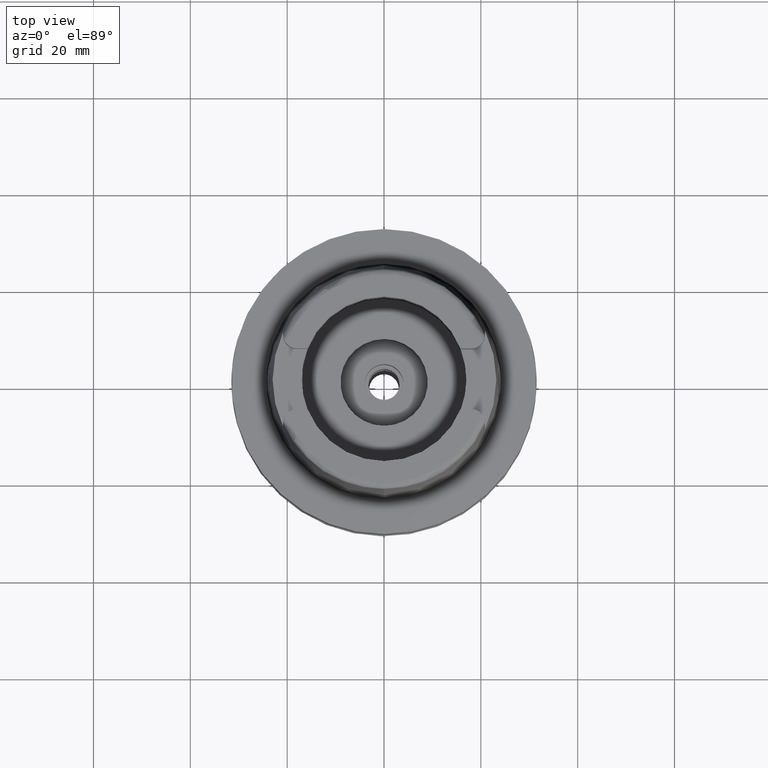
[diagram: clean part render]
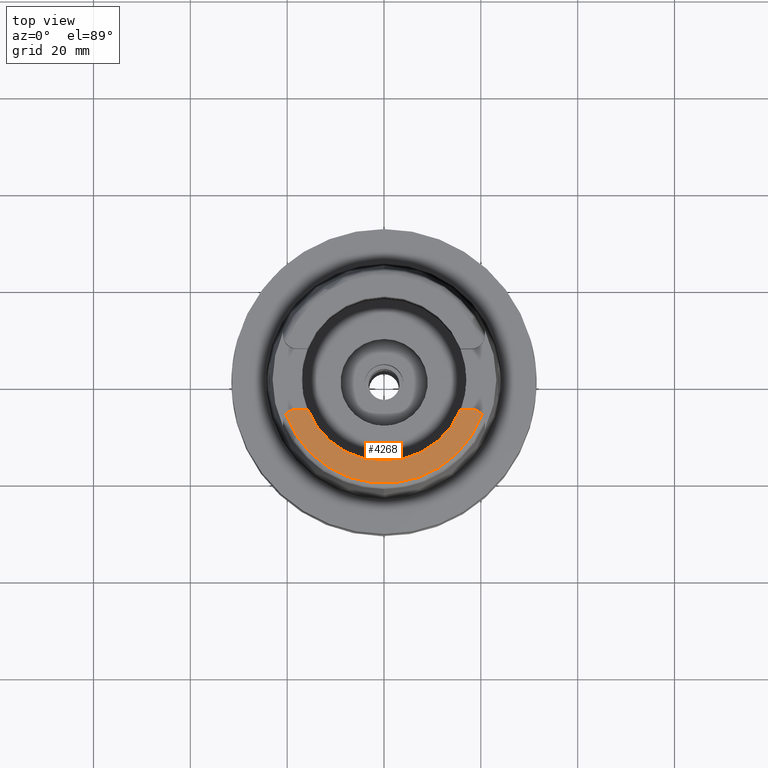
[diagram: same view with one face highlighted and labeled with its STEP entity id]
A machine part, top view. The second image highlights one B-rep face of the part: STEP entity #4268.
In plain terms, the highlighted planar face has unit normal (0, 0, -1).
Its self-contained STEP definition (entity closure, byte-faithful):
#8 = VECTOR ( 'NONE', #3618, 1000.000000000000000 ) ;
#43 = DIRECTION ( 'NONE',  ( -0.0009289215035771249650, -0.9999995685523269673, 0.0000000000000000000 ) ) ;
#67 = DIRECTION ( 'NONE',  ( 0.0000000000000000000, 0.0000000000000000000, -1.000000000000000000 ) ) ;
#114 = AXIS2_PLACEMENT_3D ( 'NONE', #3578, #5296, #4028 ) ;
#166 = ORIENTED_EDGE ( 'NONE', *, *, #5481, .F. ) ;
#263 = CARTESIAN_POINT ( 'NONE',  ( 17.98999999999999844, -9.150000000000000355, 32.00000000000000000 ) ) ;
#311 = CIRCLE ( 'NONE', #4434, 2.880000000000000782 ) ;
#351 = CARTESIAN_POINT ( 'NONE',  ( 17.98999999999999844, -6.270000000000000462, 32.00000000000000000 ) ) ;
#527 = CARTESIAN_POINT ( 'NONE',  ( 15.80149043602999903, -6.270000000000000462, 32.00000000000000000 ) ) ;
#625 = DIRECTION ( 'NONE',  ( 0.0000000000000000000, 0.0000000000000000000, -1.000000000000000000 ) ) ;
#652 = DIRECTION ( 'NONE',  ( 0.0000000000000000000, 1.000000000000000000, 0.0000000000000000000 ) ) ;
#1037 = DIRECTION ( 'NONE',  ( 0.0000000000000000000, 0.0000000000000000000, 1.000000000000000000 ) ) ;
#1196 = CIRCLE ( 'NONE', #5250, 17.00000000000000000 ) ;
#1463 = DIRECTION ( 'NONE',  ( 0.0000000000000000000, -1.000000000000000000, 0.0000000000000000000 ) ) ;
#1555 = VERTEX_POINT ( 'NONE', #4309 ) ;
#1708 = VERTEX_POINT ( 'NONE', #351 ) ;
#1734 = DIRECTION ( 'NONE',  ( -0.7912216523763718756, 0.6115294733786784676, 0.0000000000000000000 ) ) ;
#1857 = PLANE ( 'NONE',  #114 ) ;
#2001 = CARTESIAN_POINT ( 'NONE',  ( 20.26871835884000106, -7.388795116669998997, 32.00000000000000000 ) ) ;
#2002 = ORIENTED_EDGE ( 'NONE', *, *, #4609, .T. ) ;
#2078 = CARTESIAN_POINT ( 'NONE',  ( 0.0000000000000000000, 0.0000000000000000000, 32.00000000000000000 ) ) ;
#2122 = DIRECTION ( 'NONE',  ( 0.0000000000000000000, 0.0000000000000000000, -1.000000000000000000 ) ) ;
#2357 = CARTESIAN_POINT ( 'NONE',  ( 0.0000000000000000000, -17.00000000000000000, 32.00000000000000000 ) ) ;
#2372 = AXIS2_PLACEMENT_3D ( 'NONE', #4211, #4052, #1463 ) ;
#2507 = VERTEX_POINT ( 'NONE', #2357 ) ;
#2535 = CARTESIAN_POINT ( 'NONE',  ( -20.26871835884000106, -7.388795116668999796, 32.00000000000000000 ) ) ;
#2605 = CARTESIAN_POINT ( 'NONE',  ( -17.98999999999999844, -9.150000000000000355, 32.00000000000000000 ) ) ;
#2632 = EDGE_LOOP ( 'NONE', ( #4753, #3088, #2002, #2768, #166, #5516, #3524 ) ) ;
#2698 = DIRECTION ( 'NONE',  ( -1.000000000000000000, -8.522579531193000322E-14, 0.0000000000000000000 ) ) ;
#2725 = VERTEX_POINT ( 'NONE', #2808 ) ;
#2768 = ORIENTED_EDGE ( 'NONE', *, *, #5554, .F. ) ;
#2804 = CIRCLE ( 'NONE', #5318, 21.57348458609000375 ) ;
#2808 = CARTESIAN_POINT ( 'NONE',  ( -17.98999999999999844, -6.270000000000000462, 32.00000000000000000 ) ) ;
#2843 = VERTEX_POINT ( 'NONE', #2001 ) ;
#3023 = VERTEX_POINT ( 'NONE', #2535 ) ;
#3078 = CIRCLE ( 'NONE', #3251, 2.880000000000003446 ) ;
#3088 = ORIENTED_EDGE ( 'NONE', *, *, #5447, .F. ) ;
#3222 = CARTESIAN_POINT ( 'NONE',  ( -15.80149043602999903, -6.270000000000000462, 32.00000000000000000 ) ) ;
#3251 = AXIS2_PLACEMENT_3D ( 'NONE', #2605, #2122, #1734 ) ;
#3284 = CARTESIAN_POINT ( 'NONE',  ( 0.0000000000000000000, 0.0000000000000000000, 32.00000000000000000 ) ) ;
#3387 = VERTEX_POINT ( 'NONE', #527 ) ;
#3524 = ORIENTED_EDGE ( 'NONE', *, *, #3857, .F. ) ;
#3578 = CARTESIAN_POINT ( 'NONE',  ( 0.0000000000000000000, 0.0000000000000000000, 32.00000000000000000 ) ) ;
#3583 = EDGE_CURVE ( 'NONE', #1555, #2725, #4039, .T. ) ;
#3618 = DIRECTION ( 'NONE',  ( -1.000000000000000000, 8.644330667353000255E-14, 0.0000000000000000000 ) ) ;
#3626 = LINE ( 'NONE', #3963, #5235 ) ;
#3783 = EDGE_CURVE ( 'NONE', #2843, #3023, #2804, .T. ) ;
#3857 = EDGE_CURVE ( 'NONE', #3023, #2725, #3078, .T. ) ;
#3963 = CARTESIAN_POINT ( 'NONE',  ( 17.98999999999999844, -6.270000000000000462, 32.00000000000000000 ) ) ;
#4028 = DIRECTION ( 'NONE',  ( 0.0000000000000000000, -1.000000000000000000, 0.0000000000000000000 ) ) ;
#4039 = LINE ( 'NONE', #3222, #8 ) ;
#4052 = DIRECTION ( 'NONE',  ( 0.0000000000000000000, 0.0000000000000000000, 1.000000000000000000 ) ) ;
#4211 = CARTESIAN_POINT ( 'NONE',  ( 0.0000000000000000000, 0.0000000000000000000, 32.00000000000000000 ) ) ;
#4268 = ADVANCED_FACE ( 'NONE', ( #4385 ), #1857, .F. ) ;
#4309 = CARTESIAN_POINT ( 'NONE',  ( -15.80149043602999903, -6.270000000000000462, 32.00000000000000000 ) ) ;
#4385 = FACE_OUTER_BOUND ( 'NONE', #2632, .T. ) ;
#4434 = AXIS2_PLACEMENT_3D ( 'NONE', #263, #625, #652 ) ;
#4609 = EDGE_CURVE ( 'NONE', #1708, #3387, #3626, .T. ) ;
#4753 = ORIENTED_EDGE ( 'NONE', *, *, #3783, .F. ) ;
#4886 = DIRECTION ( 'NONE',  ( -0.9294994374136111848, -0.3688235294118045182, 0.0000000000000000000 ) ) ;
#5235 = VECTOR ( 'NONE', #2698, 1000.000000000000000 ) ;
#5250 = AXIS2_PLACEMENT_3D ( 'NONE', #2078, #1037, #4886 ) ;
#5296 = DIRECTION ( 'NONE',  ( 0.0000000000000000000, 0.0000000000000000000, -1.000000000000000000 ) ) ;
#5318 = AXIS2_PLACEMENT_3D ( 'NONE', #3284, #67, #43 ) ;
#5444 = CIRCLE ( 'NONE', #2372, 17.00000000000000000 ) ;
#5447 = EDGE_CURVE ( 'NONE', #1708, #2843, #311, .T. ) ;
#5481 = EDGE_CURVE ( 'NONE', #1555, #2507, #1196, .T. ) ;
#5516 = ORIENTED_EDGE ( 'NONE', *, *, #3583, .T. ) ;
#5554 = EDGE_CURVE ( 'NONE', #2507, #3387, #5444, .T. ) ;